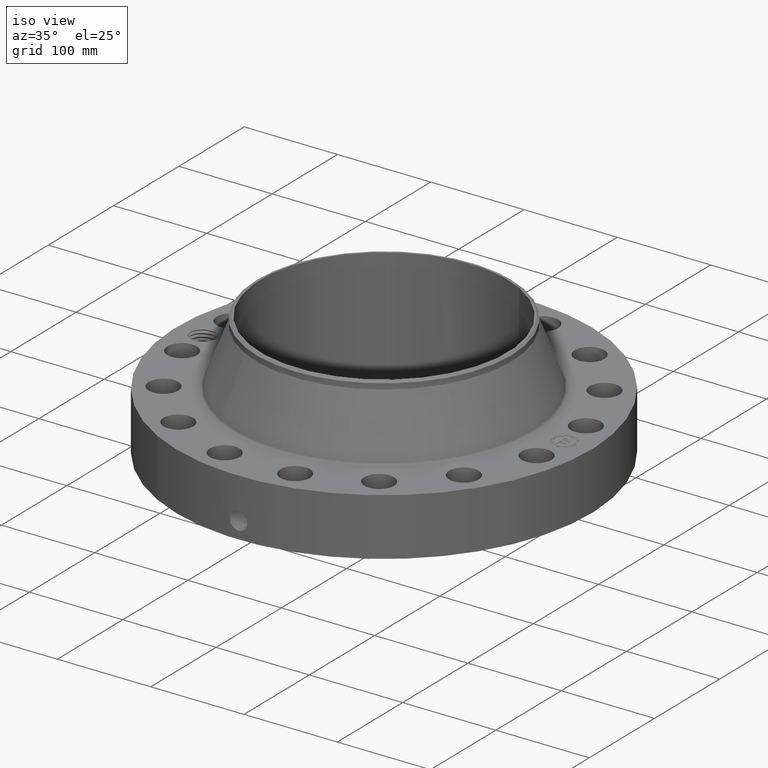
[diagram: clean part render]
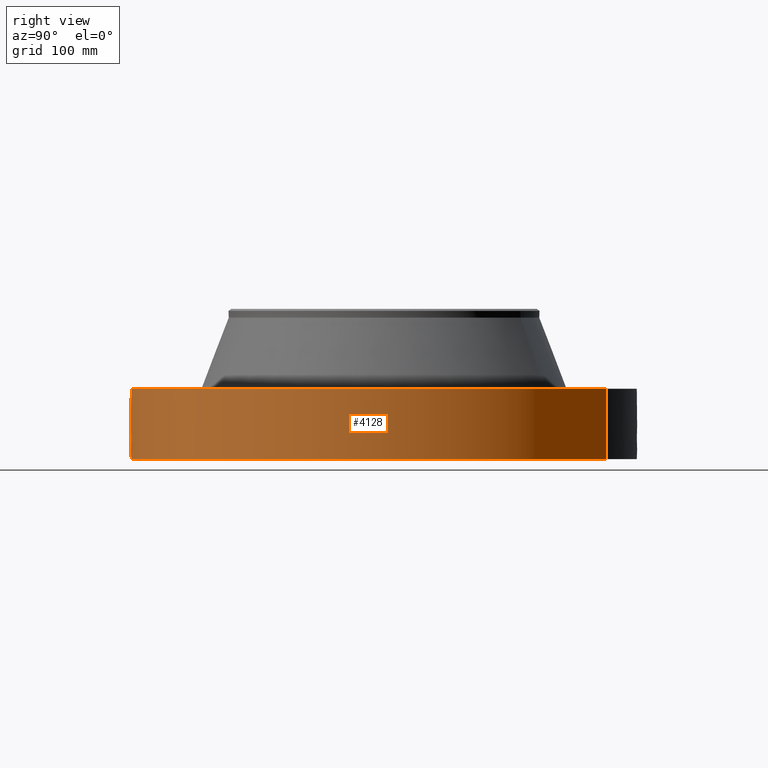
[diagram: tour spotlight — one face highlighted and labeled with its STEP entity id]
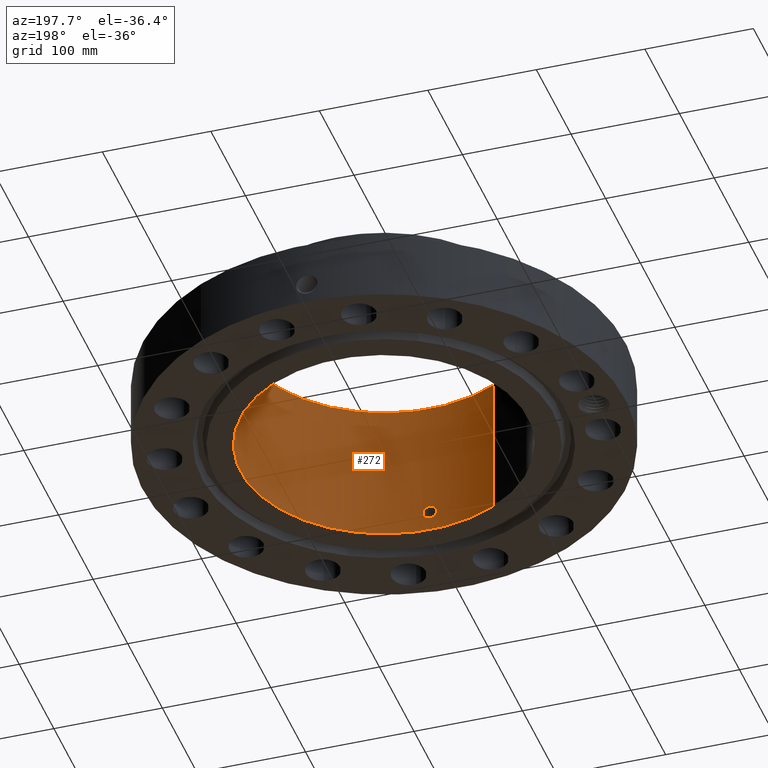
[diagram: tour spotlight — one face highlighted and labeled with its STEP entity id]
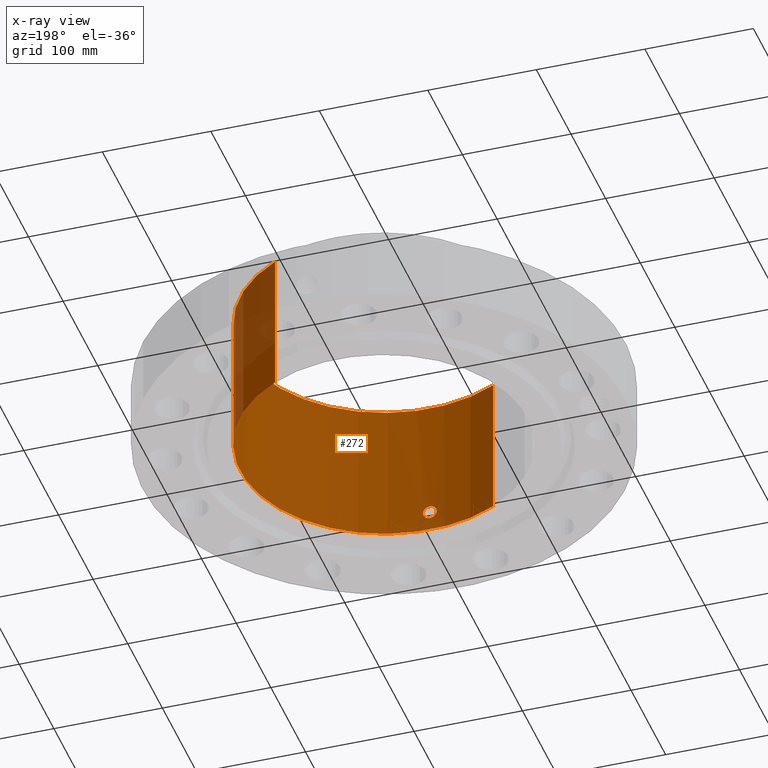
[diagram: x-ray of the same camera — body ghosted, this tour face saturated]
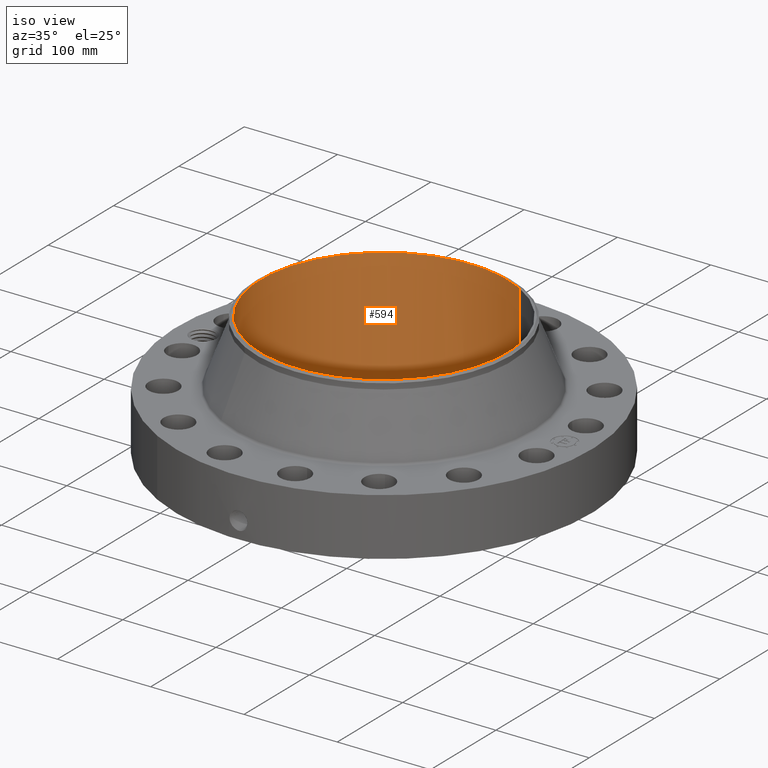
[diagram: tour spotlight — one face highlighted and labeled with its STEP entity id]
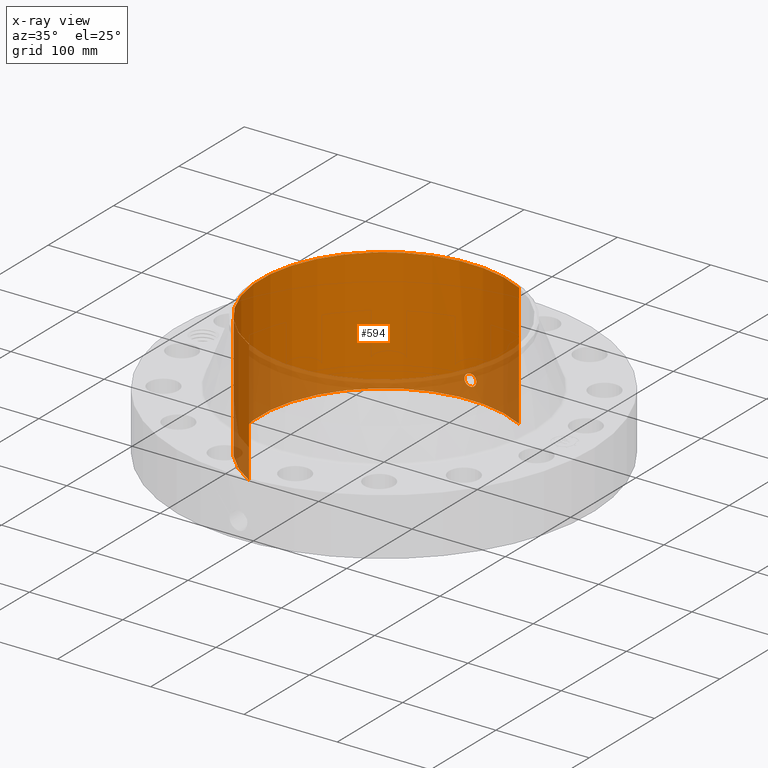
[diagram: x-ray of the same camera — body ghosted, this tour face saturated]
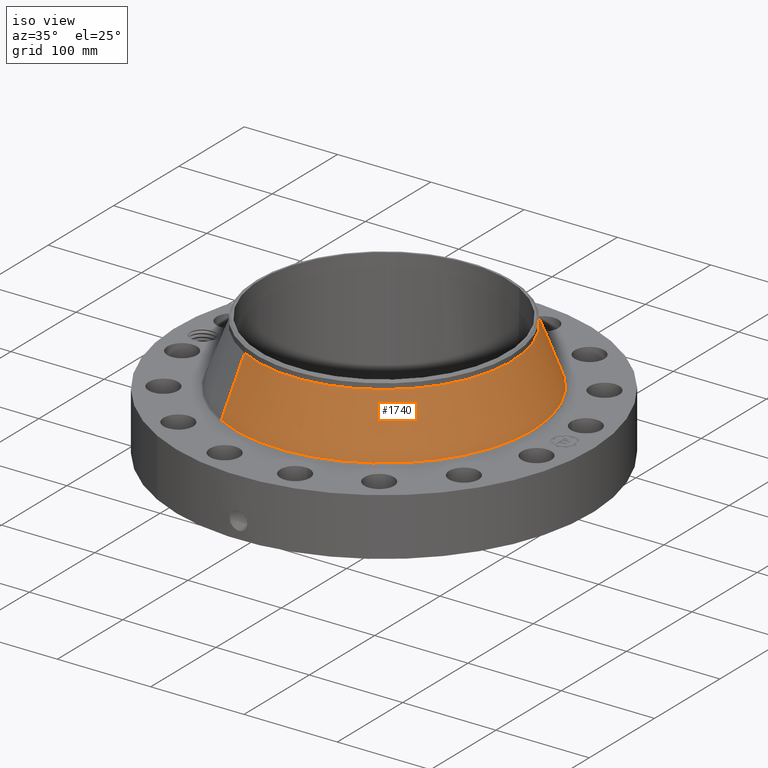
[diagram: tour spotlight — one face highlighted and labeled with its STEP entity id]
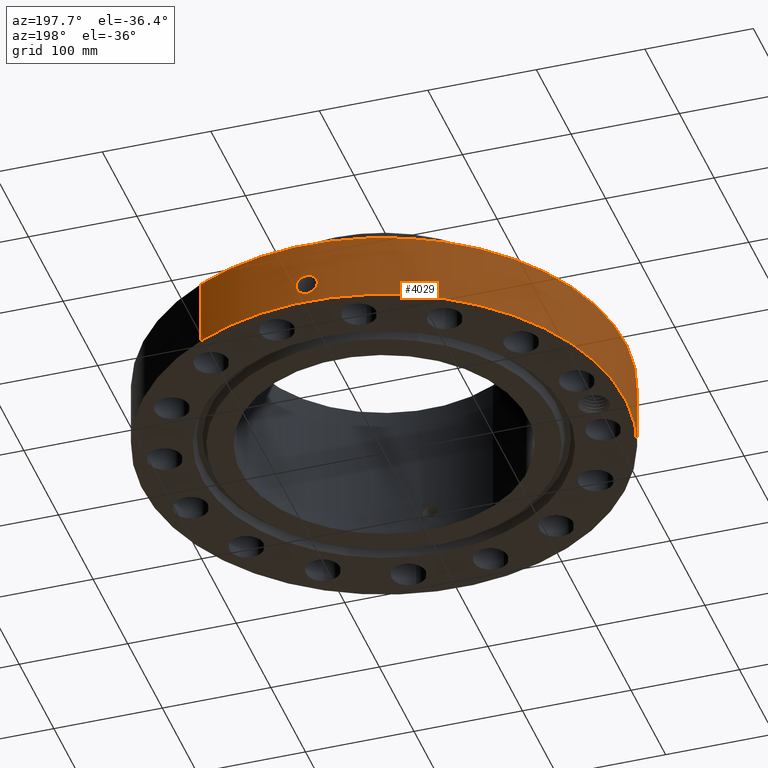
[diagram: tour spotlight — one face highlighted and labeled with its STEP entity id]
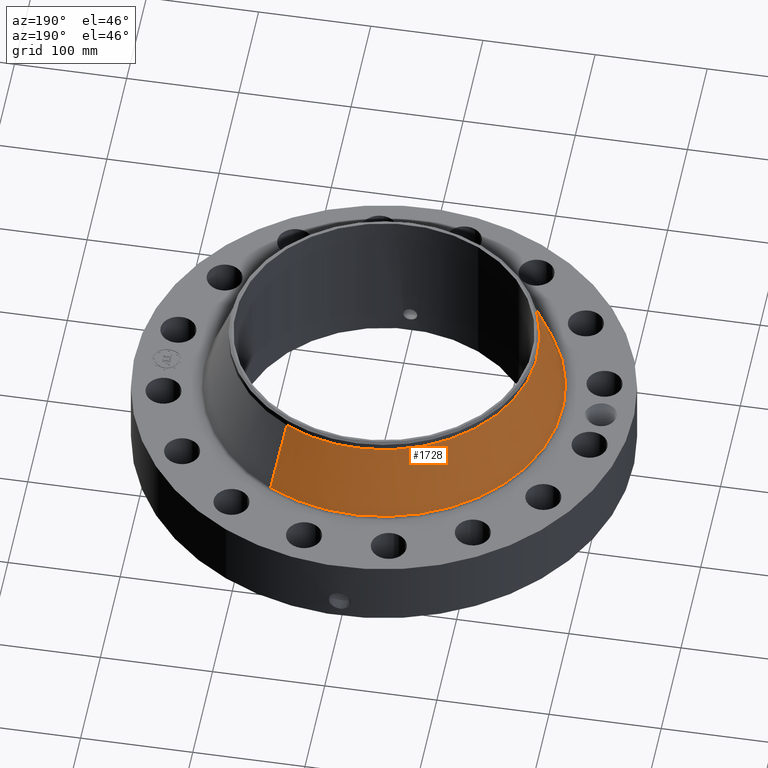
[diagram: tour spotlight — one face highlighted and labeled with its STEP entity id]
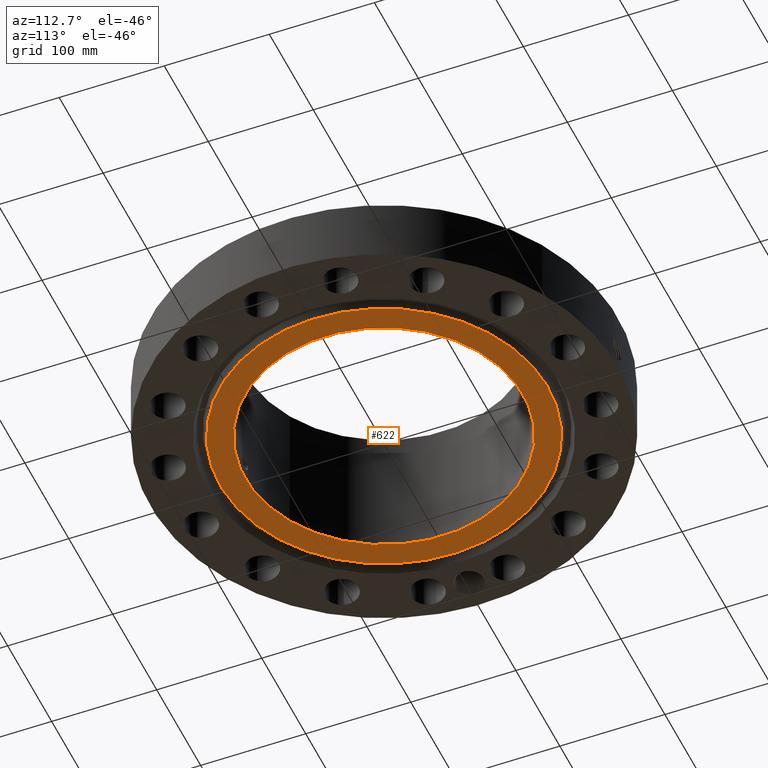
[diagram: tour spotlight — one face highlighted and labeled with its STEP entity id]
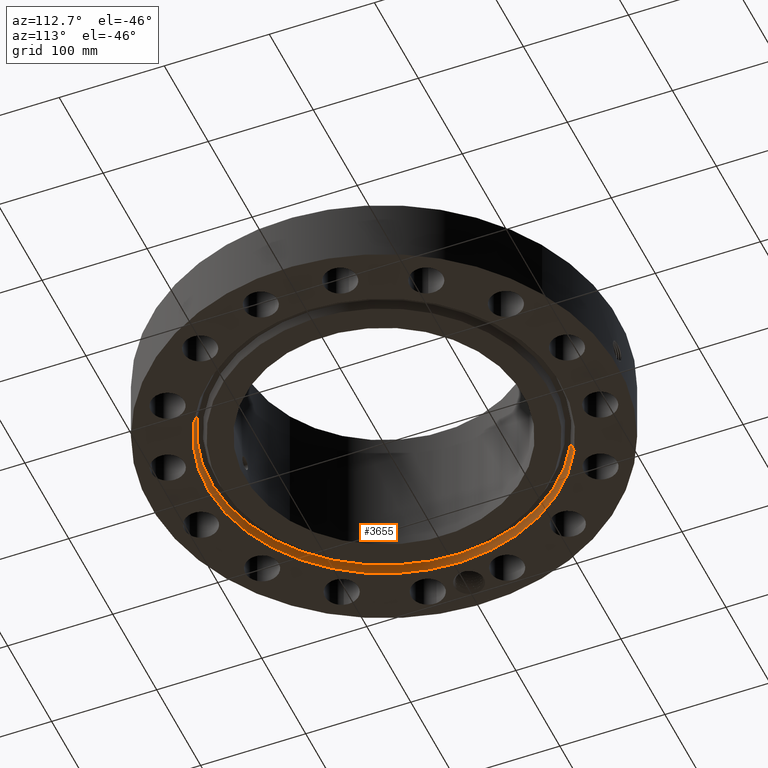
[diagram: tour spotlight — one face highlighted and labeled with its STEP entity id]
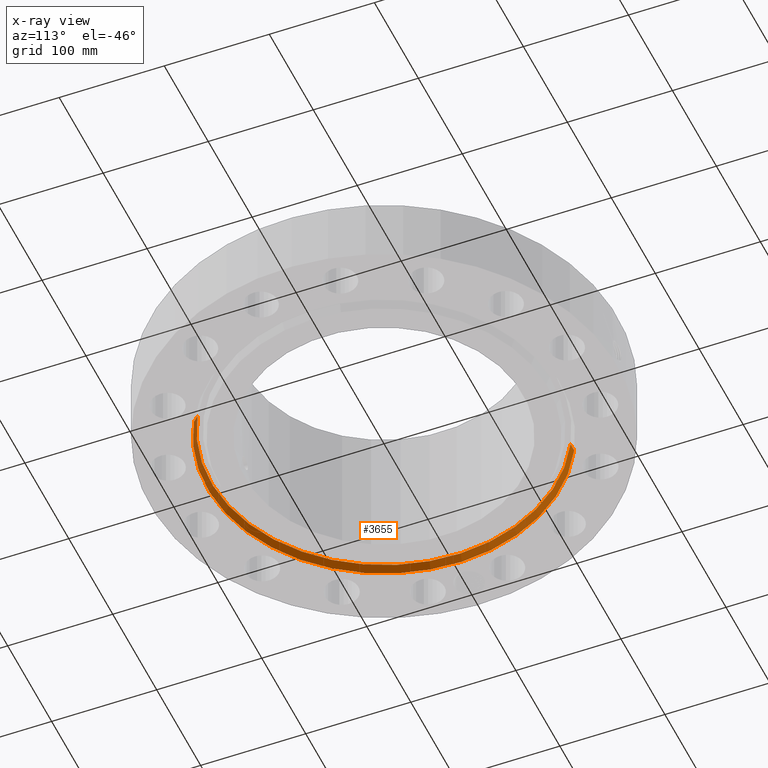
[diagram: x-ray of the same camera — body ghosted, this tour face saturated]
A machine part: a face-by-face anatomy tour. The part has 806 B-rep faces; the first image is the clean iso view, then the 8 largest visible faces are spotlighted one at a time (largest first), each with its STEP entity span.

Face 1 — right view, entity #4128. In plain terms, the highlighted cylindrical surface (partial cylindrical patch) has radius 222.25 mm, axis along (0, 0, -1).
Definition (entity closure, byte-faithful):
#2918=AXIS2_PLACEMENT_3D('Circle Axis2P3D',#2916,#2917,$) ;
#3915=AXIS2_PLACEMENT_3D('Cylinder Axis2P3D',#3912,#3913,#3914) ;
#4032=AXIS2_PLACEMENT_3D('Circle Axis2P3D',#4030,#4031,$) ;
#2916=CARTESIAN_POINT('Axis2P3D Location',(0.,0.,2.43200000001)) ;
#2920=CARTESIAN_POINT('Vertex',(4.1949734628,7.67884741657,2.43200000001)) ;
#2922=CARTESIAN_POINT('Vertex',(-4.1949734628,-7.67884741657,2.43200000001)) ;
#3912=CARTESIAN_POINT('Axis2P3D Location',(0.,0.,2.59600000001)) ;
#3921=CARTESIAN_POINT('Vertex',(-4.1949734628,-7.67884741657,5.59482469102E-016)) ;
#3923=CARTESIAN_POINT('Vertex',(4.1949734628,7.67884741657,5.59482469102E-016)) ;
#3926=CARTESIAN_POINT('Line Origine',(-4.1949734628,-7.67884741657,1.216)) ;
#3931=CARTESIAN_POINT('Line Origine',(4.1949734628,7.67884741657,1.216)) ;
#4030=CARTESIAN_POINT('Axis2P3D Location',(0.,0.,5.59482469102E-016)) ;
#4042=CARTESIAN_POINT('Control Point',(0.0581082113384,-8.74980705138,1.09931275918)) ;
#4043=CARTESIAN_POINT('Control Point',(0.0391507428738,-8.74993294954,1.10247040508)) ;
#4044=CARTESIAN_POINT('Control Point',(0.0199351377812,-8.7499983976,1.10407954749)) ;
#4045=CARTESIAN_POINT('Control Point',(0.000716211241814,-8.74999997072,1.10411849893)) ;
#4046=CARTESIAN_POINT('Vertex',(0.058094103343,-8.74980740847,1.09931539446)) ;
#4048=CARTESIAN_POINT('Vertex',(0.000716087015019,-8.74999997073,1.10411850938)) ;
#4052=CARTESIAN_POINT('Control Point',(0.0580939951518,-8.74980714578,1.09931480802)) ;
#4053=CARTESIAN_POINT('Control Point',(0.097487552732,-8.74954559383,1.09448302669)) ;
#4054=CARTESIAN_POINT('Control Point',(0.13612979578,-8.74901297423,1.08246986474)) ;
#4055=CARTESIAN_POINT('Control Point',(0.171610206376,-8.74831697744,1.06416185771)) ;
#4056=CARTESIAN_POINT('Vertex',(0.171610206376,-8.74831697744,1.06416185771)) ;
#4060=CARTESIAN_POINT('Control Point',(0.0302669250486,-8.74994765206,0.341133857002)) ;
#4061=CARTESIAN_POINT('Control Point',(0.0865126194186,-8.7497530927,0.348286208238)) ;
#4062=CARTESIAN_POINT('Control Point',(0.141163769269,-8.74911210118,0.365899658817)) ;
#4063=CARTESIAN_POINT('Control Point',(0.191479456551,-8.74808366168,0.393467512332)) ;
#4064=CARTESIAN_POINT('Control Point',(0.264585195536,-8.74612690955,0.452883889274)) ;
#4065=CARTESIAN_POINT('Control Point',(0.316528462496,-8.74430507499,0.529208859583)) ;
#4066=CARTESIAN_POINT('Control Point',(0.333583700452,-8.74365536444,0.561880812708)) ;
#4067=CARTESIAN_POINT('Control Point',(0.368975035571,-8.7422470228,0.654035266192)) ;
#4068=CARTESIAN_POINT('Control Point',(0.375098719311,-8.74194353704,0.752677612333)) ;
#4069=CARTESIAN_POINT('Control Point',(0.366946086345,-8.74231502189,0.81432650884)) ;
#4070=CARTESIAN_POINT('Control Point',(0.333642995846,-8.74374181876,0.912287176358)) ;
#4071=CARTESIAN_POINT('Control Point',(0.27096648019,-8.74586349126,0.99272421549)) ;
#4072=CARTESIAN_POINT('Control Point',(0.241231379581,-8.74676440465,1.02147019826)) ;
#4073=CARTESIAN_POINT('Control Point',(0.207766159023,-8.74760772896,1.04550526854)) ;
#4074=CARTESIAN_POINT('Control Point',(0.171610206376,-8.74831697744,1.06416185771)) ;
#4075=CARTESIAN_POINT('Vertex',(0.0302669250486,-8.74994765206,0.341133857002)) ;
#4079=CARTESIAN_POINT('Control Point',(0.0302669250486,-8.74994765206,0.341133857002)) ;
#4080=CARTESIAN_POINT('Control Point',(0.0201721120829,-8.74998257101,0.340866678134)) ;
#4081=CARTESIAN_POINT('Control Point',(0.0100722667832,-8.75000000318,0.340947102439)) ;
#4082=CARTESIAN_POINT('Control Point',(-2.72878353091E-006,-8.75000000003,0.341374667804)) ;
#4083=CARTESIAN_POINT('Vertex',(-2.72878353845E-006,-8.75000000003,0.341374667804)) ;
#4087=CARTESIAN_POINT('Control Point',(-0.19328241765,-8.74786499139,0.39620888473)) ;
#4088=CARTESIAN_POINT('Control Point',(-0.149259962972,-8.74883765918,0.371336697884)) ;
#4089=CARTESIAN_POINT('Control Point',(-0.101168996964,-8.74960564166,0.353535751558)) ;
#4090=CARTESIAN_POINT('Control Point',(-0.0508246752549,-8.74999998419,0.34353146512)) ;
#4091=CARTESIAN_POINT('Control Point',(-2.72878352313E-006,-8.75000000003,0.341374667805)) ;
#4092=CARTESIAN_POINT('Vertex',(-0.19328241765,-8.74786499139,0.39620888473)) ;
#4096=CARTESIAN_POINT('Control Point',(-0.19328241765,-8.74786499139,0.39620888473)) ;
#4097=CARTESIAN_POINT('Control Point',(-0.222320013053,-8.74722341123,0.412614795594)) ;
#4098=CARTESIAN_POINT('Control Point',(-0.249702832977,-8.74649785024,0.43190436668)) ;
#4099=CARTESIAN_POINT('Control Point',(-0.275025862912,-8.74572454017,0.453907776817)) ;
#4100=CARTESIAN_POINT('Control Point',(-0.341959797183,-8.74345929159,0.525550661122)) ;
#4101=CARTESIAN_POINT('Control Point',(-0.384721449429,-8.7415800014,0.615221601359)) ;
#4102=CARTESIAN_POINT('Control Point',(-0.399824067752,-8.74084549811,0.679596595605)) ;
#4103=CARTESIAN_POINT('Control Point',(-0.400741251108,-8.74084616896,0.793900913416)) ;
#4104=CARTESIAN_POINT('Control Point',(-0.360682760066,-8.74259093656,0.898628588351)) ;
#4105=CARTESIAN_POINT('Control Point',(-0.336434934861,-8.74359787649,0.940095914243)) ;
#4106=CARTESIAN_POINT('Control Point',(-0.267541262196,-8.74613174515,1.02398894535)) ;
#4107=CARTESIAN_POINT('Control Point',(-0.174601905421,-8.74851033423,1.07870829013)) ;
#4108=CARTESIAN_POINT('Control Point',(-0.117427757739,-8.74951483366,1.09858358611)) ;
#4109=CARTESIAN_POINT('Control Point',(-0.0582716037717,-8.75000017228,1.10701111984)) ;
#4110=CARTESIAN_POINT('Control Point',(2.585793554E-005,-8.75,1.10415298432)) ;
#4111=CARTESIAN_POINT('Vertex',(2.58579355363E-005,-8.75,1.10415298432)) ;
#4115=CARTESIAN_POINT('Control Point',(0.000716087004833,-8.74999997073,1.10411850936)) ;
#4116=CARTESIAN_POINT('Control Point',(0.000370996506658,-8.74999999898,1.1041360633)) ;
#4117=CARTESIAN_POINT('Control Point',(2.58579413648E-005,-8.75,1.10415298432)) ;
#2917=DIRECTION('Axis2P3D Direction',(0.,0.,-0.0393700787402)) ;
#3913=DIRECTION('Axis2P3D Direction',(0.,0.,-0.0393700787402)) ;
#3914=DIRECTION('Axis2P3D XDirection',(0.0188750212049,0.0345504945626,0.)) ;
#3927=DIRECTION('Vector Direction',(0.,0.,-0.0393700787402)) ;
#3932=DIRECTION('Vector Direction',(0.,0.,-0.0393700787402)) ;
#4031=DIRECTION('Axis2P3D Direction',(0.,0.,-0.0393700787402)) ;
#3928=VECTOR('Line Direction',#3927,0.0393700787402) ;
#3933=VECTOR('Line Direction',#3932,0.0393700787402) ;
#4036=ORIENTED_EDGE('',*,*,#4034,.F.) ;
#4037=ORIENTED_EDGE('',*,*,#3935,.T.) ;
#4038=ORIENTED_EDGE('',*,*,#2924,.T.) ;
#4039=ORIENTED_EDGE('',*,*,#3930,.F.) ;
#4120=ORIENTED_EDGE('',*,*,#4050,.F.) ;
#4121=ORIENTED_EDGE('',*,*,#4058,.T.) ;
#4122=ORIENTED_EDGE('',*,*,#4077,.F.) ;
#4123=ORIENTED_EDGE('',*,*,#4085,.T.) ;
#4124=ORIENTED_EDGE('',*,*,#4094,.F.) ;
#4125=ORIENTED_EDGE('',*,*,#4113,.T.) ;
#4126=ORIENTED_EDGE('',*,*,#4118,.F.) ;
#4127=FACE_BOUND('',#4119,.T.) ;
#4128=ADVANCED_FACE('PartBody',(#4040,#4127),#3916,.T.) ;
#4041=B_SPLINE_CURVE_WITH_KNOTS('',3,(#4042,#4043,#4044,#4045),.UNSPECIFIED.,.F.,.U.,(4,4),(4.38919203562,6.5213575185),.UNSPECIFIED.) ;
#4051=B_SPLINE_CURVE_WITH_KNOTS('',3,(#4052,#4053,#4054,#4055),.UNSPECIFIED.,.F.,.U.,(4,4),(0.,4.45945184489),.UNSPECIFIED.) ;
#4059=B_SPLINE_CURVE_WITH_KNOTS('',5,(#4060,#4061,#4062,#4063,#4064,#4065,#4066,#4067,#4068,#4069,#4070,#4071,#4072,#4073,#4074),.UNSPECIFIED.,.F.,.U.,(6,3,3,3,6),(0.,9.85389436005,16.4310832884,27.5941658032,35.1680977962),.UNSPECIFIED.) ;
#4078=B_SPLINE_CURVE_WITH_KNOTS('',3,(#4079,#4080,#4081,#4082),.UNSPECIFIED.,.F.,.U.,(4,4),(0.,1.05295486204),.UNSPECIFIED.) ;
#4086=B_SPLINE_CURVE_WITH_KNOTS('',4,(#4087,#4088,#4089,#4090,#4091),.UNSPECIFIED.,.F.,.U.,(5,5),(0.,7.08198369589),.UNSPECIFIED.) ;
#4095=B_SPLINE_CURVE_WITH_KNOTS('',5,(#4096,#4097,#4098,#4099,#4100,#4101,#4102,#4103,#4104,#4105,#4106,#4107,#4108,#4109,#4110),.UNSPECIFIED.,.F.,.U.,(6,3,3,3,6),(0.,5.83917277313,17.100766758,25.5637802425,36.4607847206),.UNSPECIFIED.) ;
#4114=B_SPLINE_CURVE_WITH_KNOTS('',2,(#4115,#4116,#4117),.UNSPECIFIED.,.F.,.U.,(3,3),(1.04630914316,1.07211456638),.UNSPECIFIED.) ;
#2919=CIRCLE('generated circle',#2918,8.75000000004) ;
#4033=CIRCLE('generated circle',#4032,8.75000000003) ;
#3916=CYLINDRICAL_SURFACE('generated cylinder',#3915,8.75000000003) ;
#2924=EDGE_CURVE('',#2921,#2923,#2919,.T.) ;
#3930=EDGE_CURVE('',#3922,#2923,#3929,.F.) ;
#3935=EDGE_CURVE('',#3924,#2921,#3934,.F.) ;
#4034=EDGE_CURVE('',#3924,#3922,#4033,.T.) ;
#4050=EDGE_CURVE('',#4047,#4049,#4041,.T.) ;
#4058=EDGE_CURVE('',#4047,#4057,#4051,.T.) ;
#4077=EDGE_CURVE('',#4076,#4057,#4059,.T.) ;
#4085=EDGE_CURVE('',#4076,#4084,#4078,.T.) ;
#4094=EDGE_CURVE('',#4093,#4084,#4086,.T.) ;
#4113=EDGE_CURVE('',#4093,#4112,#4095,.T.) ;
#4118=EDGE_CURVE('',#4049,#4112,#4114,.T.) ;
#4035=EDGE_LOOP('',(#4036,#4037,#4038,#4039)) ;
#4119=EDGE_LOOP('',(#4120,#4121,#4122,#4123,#4124,#4125,#4126)) ;
#4040=FACE_OUTER_BOUND('',#4035,.T.) ;
#3929=LINE('Line',#3926,#3928) ;
#3934=LINE('Line',#3931,#3933) ;
#2921=VERTEX_POINT('',#2920) ;
#2923=VERTEX_POINT('',#2922) ;
#3922=VERTEX_POINT('',#3921) ;
#3924=VERTEX_POINT('',#3923) ;
#4047=VERTEX_POINT('',#4046) ;
#4049=VERTEX_POINT('',#4048) ;
#4057=VERTEX_POINT('',#4056) ;
#4076=VERTEX_POINT('',#4075) ;
#4084=VERTEX_POINT('',#4083) ;
#4093=VERTEX_POINT('',#4092) ;
#4112=VERTEX_POINT('',#4111) ;

Face 2 — auxiliary view, entity #272. An x-ray twin of the same camera follows (body ghosted, this face saturated) — the face is partly hidden behind the body. In plain terms, the highlighted cylindrical surface (partial cylindrical patch) has radius 132.334 mm, axis along (0, 0, -1).
Definition (entity closure, byte-faithful):
#232=AXIS2_PLACEMENT_3D('Cylinder Axis2P3D',#229,#230,#231) ;
#236=AXIS2_PLACEMENT_3D('Circle Axis2P3D',#234,#235,$) ;
#252=AXIS2_PLACEMENT_3D('Circle Axis2P3D',#250,#251,$) ;
#81=CARTESIAN_POINT('Control Point',(0.219395640473,-5.2053785216,0.630143615351)) ;
#82=CARTESIAN_POINT('Control Point',(0.20692170272,-5.20590427156,0.607310225452)) ;
#83=CARTESIAN_POINT('Control Point',(0.191478161052,-5.20651775151,0.586101157606)) ;
#84=CARTESIAN_POINT('Control Point',(0.173344968667,-5.20717156544,0.567029489667)) ;
#85=CARTESIAN_POINT('Control Point',(0.112135210692,-5.2090626372,0.517549945148)) ;
#86=CARTESIAN_POINT('Control Point',(0.0349794125564,-5.21029125396,0.494025856698)) ;
#87=CARTESIAN_POINT('Control Point',(-0.0195629275544,-5.2103830272,0.492387753741)) ;
#88=CARTESIAN_POINT('Control Point',(-0.124148912451,-5.2090305894,0.517531335574)) ;
#89=CARTESIAN_POINT('Control Point',(-0.203194386894,-5.20623138686,0.590445807806)) ;
#90=CARTESIAN_POINT('Control Point',(-0.232170402879,-5.20485332582,0.636662467898)) ;
#91=CARTESIAN_POINT('Control Point',(-0.255833821541,-5.20371895007,0.714817876533)) ;
#92=CARTESIAN_POINT('Control Point',(-0.248294622216,-5.20408005818,0.7942046281)) ;
#93=CARTESIAN_POINT('Control Point',(-0.242060573047,-5.20438304358,0.82078605312)) ;
#94=CARTESIAN_POINT('Control Point',(-0.23232275344,-5.20483367127,0.846193463093)) ;
#95=CARTESIAN_POINT('Control Point',(-0.219395640473,-5.2053785216,0.869856384655)) ;
#96=CARTESIAN_POINT('Vertex',(0.219395640473,-5.2053785216,0.630143615351)) ;
#98=CARTESIAN_POINT('Vertex',(-0.219395640473,-5.2053785216,0.869856384655)) ;
#206=CARTESIAN_POINT('Control Point',(-0.219395640473,-5.2053785216,0.869856384655)) ;
#207=CARTESIAN_POINT('Control Point',(-0.206921702717,-5.20590427156,0.892689774559)) ;
#208=CARTESIAN_POINT('Control Point',(-0.191478161044,-5.20651775151,0.91389884241)) ;
#209=CARTESIAN_POINT('Control Point',(-0.173344968677,-5.20717156544,0.932970510331)) ;
#210=CARTESIAN_POINT('Control Point',(-0.112135210696,-5.2090626372,0.982450054858)) ;
#211=CARTESIAN_POINT('Control Point',(-0.0349794125502,-5.21029125396,1.00597414331)) ;
#212=CARTESIAN_POINT('Control Point',(0.0195629275478,-5.2103830272,1.00761224627)) ;
#213=CARTESIAN_POINT('Control Point',(0.124148912413,-5.2090305894,0.982468664443)) ;
#214=CARTESIAN_POINT('Control Point',(0.20319438684,-5.20623138687,0.90955419225)) ;
#215=CARTESIAN_POINT('Control Point',(0.232170402901,-5.20485332582,0.863337532037)) ;
#216=CARTESIAN_POINT('Control Point',(0.255833821538,-5.20371895007,0.785182123437)) ;
#217=CARTESIAN_POINT('Control Point',(0.248294622217,-5.20408005818,0.705795371907)) ;
#218=CARTESIAN_POINT('Control Point',(0.242060573046,-5.20438304358,0.679213946885)) ;
#219=CARTESIAN_POINT('Control Point',(0.23232275344,-5.20483367127,0.653806536913)) ;
#220=CARTESIAN_POINT('Control Point',(0.219395640473,-5.2053785216,0.630143615351)) ;
#229=CARTESIAN_POINT('Axis2P3D Location',(0.,0.,2.59600000001)) ;
#234=CARTESIAN_POINT('Axis2P3D Location',(0.,0.,5.19200000002)) ;
#238=CARTESIAN_POINT('Vertex',(2.49780705614,4.57220514747,5.19200000002)) ;
#240=CARTESIAN_POINT('Vertex',(-2.49780705614,-4.57220514747,5.19200000002)) ;
#243=CARTESIAN_POINT('Line Origine',(2.49780705614,4.57220514747,2.59600000001)) ;
#247=CARTESIAN_POINT('Vertex',(2.49780705614,4.57220514747,-1.34275792585E-014)) ;
#250=CARTESIAN_POINT('Axis2P3D Location',(0.,0.,-1.34275792585E-014)) ;
#254=CARTESIAN_POINT('Vertex',(-2.49780705614,-4.57220514747,-1.34275792585E-014)) ;
#257=CARTESIAN_POINT('Line Origine',(-2.49780705614,-4.57220514747,2.59600000001)) ;
#230=DIRECTION('Axis2P3D Direction',(0.,0.,-0.0393700787402)) ;
#231=DIRECTION('Axis2P3D XDirection',(-0.0188750212049,-0.0345504945626,0.)) ;
#235=DIRECTION('Axis2P3D Direction',(0.,0.,-0.0393700787402)) ;
#244=DIRECTION('Vector Direction',(0.,0.,-0.0393700787402)) ;
#251=DIRECTION('Axis2P3D Direction',(0.,0.,-0.0393700787402)) ;
#258=DIRECTION('Vector Direction',(0.,0.,-0.0393700787402)) ;
#245=VECTOR('Line Direction',#244,0.0393700787402) ;
#259=VECTOR('Line Direction',#258,0.0393700787402) ;
#263=ORIENTED_EDGE('',*,*,#242,.F.) ;
#264=ORIENTED_EDGE('',*,*,#249,.T.) ;
#265=ORIENTED_EDGE('',*,*,#256,.T.) ;
#266=ORIENTED_EDGE('',*,*,#261,.F.) ;
#269=ORIENTED_EDGE('',*,*,#100,.F.) ;
#270=ORIENTED_EDGE('',*,*,#221,.F.) ;
#271=FACE_BOUND('',#268,.T.) ;
#272=ADVANCED_FACE('PartBody',(#267,#271),#233,.F.) ;
#80=B_SPLINE_CURVE_WITH_KNOTS('',5,(#81,#82,#83,#84,#85,#86,#87,#88,#89,#90,#91,#92,#93,#94,#95),.UNSPECIFIED.,.F.,.U.,(6,3,3,3,6),(0.,4.67401145629,14.0221832397,23.3721751167,28.2159923055),.UNSPECIFIED.) ;
#205=B_SPLINE_CURVE_WITH_KNOTS('',5,(#206,#207,#208,#209,#210,#211,#212,#213,#214,#215,#216,#217,#218,#219,#220),.UNSPECIFIED.,.F.,.U.,(6,3,3,3,6),(0.,4.6740114574,14.0221832414,23.372175112,28.2159923006),.UNSPECIFIED.) ;
#237=CIRCLE('generated circle',#236,5.21000000002) ;
#253=CIRCLE('generated circle',#252,5.21000000002) ;
#233=CYLINDRICAL_SURFACE('generated cylinder',#232,5.21000000002) ;
#100=EDGE_CURVE('',#97,#99,#80,.T.) ;
#221=EDGE_CURVE('',#99,#97,#205,.T.) ;
#242=EDGE_CURVE('',#239,#241,#237,.T.) ;
#249=EDGE_CURVE('',#239,#248,#246,.T.) ;
#256=EDGE_CURVE('',#248,#255,#253,.T.) ;
#261=EDGE_CURVE('',#241,#255,#260,.T.) ;
#262=EDGE_LOOP('',(#263,#264,#265,#266)) ;
#268=EDGE_LOOP('',(#269,#270)) ;
#267=FACE_OUTER_BOUND('',#262,.T.) ;
#246=LINE('Line',#243,#245) ;
#260=LINE('Line',#257,#259) ;
#97=VERTEX_POINT('',#96) ;
#99=VERTEX_POINT('',#98) ;
#239=VERTEX_POINT('',#238) ;
#241=VERTEX_POINT('',#240) ;
#248=VERTEX_POINT('',#247) ;
#255=VERTEX_POINT('',#254) ;

Face 3 — iso view, entity #594. An x-ray twin of the same camera follows (body ghosted, this face saturated) — the face is partly hidden behind the body. In plain terms, the highlighted cylindrical surface (partial cylindrical patch) has radius 132.334 mm, axis along (0, 0, -1).
Definition (entity closure, byte-faithful):
#232=AXIS2_PLACEMENT_3D('Cylinder Axis2P3D',#229,#230,#231) ;
#533=AXIS2_PLACEMENT_3D('Circle Axis2P3D',#531,#532,$) ;
#543=AXIS2_PLACEMENT_3D('Circle Axis2P3D',#541,#542,$) ;
#229=CARTESIAN_POINT('Axis2P3D Location',(0.,0.,2.59600000001)) ;
#238=CARTESIAN_POINT('Vertex',(2.49780705614,4.57220514747,5.19200000002)) ;
#240=CARTESIAN_POINT('Vertex',(-2.49780705614,-4.57220514747,5.19200000002)) ;
#243=CARTESIAN_POINT('Line Origine',(2.49780705614,4.57220514747,2.59600000001)) ;
#247=CARTESIAN_POINT('Vertex',(2.49780705614,4.57220514747,-1.34275792585E-014)) ;
#254=CARTESIAN_POINT('Vertex',(-2.49780705614,-4.57220514747,-1.34275792585E-014)) ;
#257=CARTESIAN_POINT('Line Origine',(-2.49780705614,-4.57220514747,2.59600000001)) ;
#531=CARTESIAN_POINT('Axis2P3D Location',(0.,0.,5.19200000002)) ;
#541=CARTESIAN_POINT('Axis2P3D Location',(0.,0.,-1.34275792585E-014)) ;
#553=CARTESIAN_POINT('Control Point',(0.219395640473,5.2053785216,0.869856384655)) ;
#554=CARTESIAN_POINT('Control Point',(0.206921702731,5.20590427156,0.892689774534)) ;
#555=CARTESIAN_POINT('Control Point',(0.191478170155,5.20651775227,0.913898825838)) ;
#556=CARTESIAN_POINT('Control Point',(0.173344984675,5.20717156625,0.932970500497)) ;
#557=CARTESIAN_POINT('Control Point',(0.112135178573,5.20906263559,0.982450074615)) ;
#558=CARTESIAN_POINT('Control Point',(0.0349794766926,5.21029125719,1.00597410384)) ;
#559=CARTESIAN_POINT('Control Point',(-0.0195628611234,5.2103830242,1.00761228185)) ;
#560=CARTESIAN_POINT('Control Point',(-0.124148978827,5.2090305924,0.98246862887)) ;
#561=CARTESIAN_POINT('Control Point',(-0.203194320435,5.20623138386,0.909554227818)) ;
#562=CARTESIAN_POINT('Control Point',(-0.232170399899,5.20485332553,0.863337607448)) ;
#563=CARTESIAN_POINT('Control Point',(-0.255833823097,5.20371895022,0.785182084372)) ;
#564=CARTESIAN_POINT('Control Point',(-0.248294621409,5.20408005811,0.705795392095)) ;
#565=CARTESIAN_POINT('Control Point',(-0.242060563313,5.20438304277,0.679213929178)) ;
#566=CARTESIAN_POINT('Control Point',(-0.23232275345,5.20483367127,0.653806536932)) ;
#567=CARTESIAN_POINT('Control Point',(-0.219395640473,5.2053785216,0.630143615351)) ;
#568=CARTESIAN_POINT('Vertex',(0.219395640473,5.2053785216,0.869856384655)) ;
#570=CARTESIAN_POINT('Vertex',(-0.219395640473,5.2053785216,0.630143615351)) ;
#574=CARTESIAN_POINT('Control Point',(-0.219395640473,5.2053785216,0.630143615351)) ;
#575=CARTESIAN_POINT('Control Point',(-0.206921702731,5.20590427156,0.607310225472)) ;
#576=CARTESIAN_POINT('Control Point',(-0.191478170156,5.20651775227,0.586101174169)) ;
#577=CARTESIAN_POINT('Control Point',(-0.173344984675,5.20717156625,0.567029499509)) ;
#578=CARTESIAN_POINT('Control Point',(-0.112135178588,5.20906263558,0.517549925402)) ;
#579=CARTESIAN_POINT('Control Point',(-0.0349794767298,5.21029125719,0.494025896179)) ;
#580=CARTESIAN_POINT('Control Point',(0.0195628611578,5.2103830242,0.492387718169)) ;
#581=CARTESIAN_POINT('Control Point',(0.124148978865,5.2090305924,0.517531371155)) ;
#582=CARTESIAN_POINT('Control Point',(0.203194320475,5.20623138386,0.590445772224)) ;
#583=CARTESIAN_POINT('Control Point',(0.232170399882,5.20485332553,0.636662392503)) ;
#584=CARTESIAN_POINT('Control Point',(0.255833823086,5.20371895022,0.71481791556)) ;
#585=CARTESIAN_POINT('Control Point',(0.248294621417,5.20408005811,0.79420460782)) ;
#586=CARTESIAN_POINT('Control Point',(0.242060563281,5.20438304277,0.820786070912)) ;
#587=CARTESIAN_POINT('Control Point',(0.232322753429,5.20483367127,0.846193463113)) ;
#588=CARTESIAN_POINT('Control Point',(0.219395640473,5.2053785216,0.869856384655)) ;
#230=DIRECTION('Axis2P3D Direction',(0.,0.,-0.0393700787402)) ;
#231=DIRECTION('Axis2P3D XDirection',(-0.0188750212049,-0.0345504945626,0.)) ;
#244=DIRECTION('Vector Direction',(0.,0.,-0.0393700787402)) ;
#258=DIRECTION('Vector Direction',(0.,0.,-0.0393700787402)) ;
#532=DIRECTION('Axis2P3D Direction',(0.,0.,-0.0393700787402)) ;
#542=DIRECTION('Axis2P3D Direction',(0.,0.,-0.0393700787402)) ;
#245=VECTOR('Line Direction',#244,0.0393700787402) ;
#259=VECTOR('Line Direction',#258,0.0393700787402) ;
#547=ORIENTED_EDGE('',*,*,#535,.F.) ;
#548=ORIENTED_EDGE('',*,*,#261,.T.) ;
#549=ORIENTED_EDGE('',*,*,#545,.T.) ;
#550=ORIENTED_EDGE('',*,*,#249,.F.) ;
#591=ORIENTED_EDGE('',*,*,#572,.F.) ;
#592=ORIENTED_EDGE('',*,*,#589,.F.) ;
#593=FACE_BOUND('',#590,.T.) ;
#594=ADVANCED_FACE('PartBody',(#551,#593),#233,.F.) ;
#552=B_SPLINE_CURVE_WITH_KNOTS('',5,(#553,#554,#555,#556,#557,#558,#559,#560,#561,#562,#563,#564,#565,#566,#567),.UNSPECIFIED.,.F.,.U.,(6,3,3,3,6),(0.,4.67401145238,14.0221832388,23.3721751116,28.2159923042),.UNSPECIFIED.) ;
#573=B_SPLINE_CURVE_WITH_KNOTS('',5,(#574,#575,#576,#577,#578,#579,#580,#581,#582,#583,#584,#585,#586,#587,#588),.UNSPECIFIED.,.F.,.U.,(6,3,3,3,6),(0.,4.67401145225,14.0221832354,23.3721751131,28.2159922977),.UNSPECIFIED.) ;
#534=CIRCLE('generated circle',#533,5.21000000002) ;
#544=CIRCLE('generated circle',#543,5.21000000002) ;
#233=CYLINDRICAL_SURFACE('generated cylinder',#232,5.21000000002) ;
#249=EDGE_CURVE('',#239,#248,#246,.T.) ;
#261=EDGE_CURVE('',#241,#255,#260,.T.) ;
#535=EDGE_CURVE('',#241,#239,#534,.T.) ;
#545=EDGE_CURVE('',#255,#248,#544,.T.) ;
#572=EDGE_CURVE('',#569,#571,#552,.T.) ;
#589=EDGE_CURVE('',#571,#569,#573,.T.) ;
#546=EDGE_LOOP('',(#547,#548,#549,#550)) ;
#590=EDGE_LOOP('',(#591,#592)) ;
#551=FACE_OUTER_BOUND('',#546,.T.) ;
#246=LINE('Line',#243,#245) ;
#260=LINE('Line',#257,#259) ;
#239=VERTEX_POINT('',#238) ;
#241=VERTEX_POINT('',#240) ;
#248=VERTEX_POINT('',#247) ;
#255=VERTEX_POINT('',#254) ;
#569=VERTEX_POINT('',#568) ;
#571=VERTEX_POINT('',#570) ;

Face 4 — iso view, entity #1740. In plain terms, the highlighted conical surface has half-angle 20.83 deg.
Definition (entity closure, byte-faithful):
#1364=AXIS2_PLACEMENT_3D('Circle Axis2P3D',#1362,#1363,$) ;
#1701=AXIS2_PLACEMENT_3D('Cone Axis2P3D',#1698,#1699,#1700) ;
#1731=AXIS2_PLACEMENT_3D('Circle Axis2P3D',#1729,#1730,$) ;
#1339=CARTESIAN_POINT('Vertex',(2.57691227001,4.71700627018,4.88959002244)) ;
#1346=CARTESIAN_POINT('Vertex',(-2.57691227001,-4.71700627018,4.88959002244)) ;
#1362=CARTESIAN_POINT('Axis2P3D Location',(0.,0.,4.88959002244)) ;
#1698=CARTESIAN_POINT('Axis2P3D Location',(0.,0.,4.88959002244)) ;
#1707=CARTESIAN_POINT('Vertex',(-3.01107031894,-5.51172724804,2.50932937592)) ;
#1709=CARTESIAN_POINT('Vertex',(3.01107031894,5.51172724804,2.50932937592)) ;
#1712=CARTESIAN_POINT('Line Origine',(-2.79399129447,-5.11436675911,3.69945969918)) ;
#1717=CARTESIAN_POINT('Line Origine',(2.79399129447,5.11436675911,3.69945969918)) ;
#1729=CARTESIAN_POINT('Axis2P3D Location',(0.,0.,2.50932937592)) ;
#1363=DIRECTION('Axis2P3D Direction',(0.,0.,-0.0393700787402)) ;
#1699=DIRECTION('Axis2P3D Direction',(0.,0.,-0.0393700787402)) ;
#1700=DIRECTION('Axis2P3D XDirection',(0.0188750212049,0.0345504945626,0.)) ;
#1713=DIRECTION('Vector Direction',(-0.00671174112036,-0.0122857597121,-0.0367969528553)) ;
#1718=DIRECTION('Vector Direction',(0.00671174112036,0.0122857597121,-0.0367969528553)) ;
#1730=DIRECTION('Axis2P3D Direction',(0.,0.,-0.0393700787402)) ;
#1714=VECTOR('Line Direction',#1713,0.0393700787402) ;
#1719=VECTOR('Line Direction',#1718,0.0393700787402) ;
#1735=ORIENTED_EDGE('',*,*,#1733,.F.) ;
#1736=ORIENTED_EDGE('',*,*,#1721,.T.) ;
#1737=ORIENTED_EDGE('',*,*,#1366,.T.) ;
#1738=ORIENTED_EDGE('',*,*,#1716,.F.) ;
#1740=ADVANCED_FACE('PartBody',(#1739),#1702,.T.) ;
#1365=CIRCLE('generated circle',#1364,5.37500000002) ;
#1732=CIRCLE('generated circle',#1731,6.28057972821) ;
#1702=CONICAL_SURFACE('Cone',#1701,5.37500000002,0.363543680777) ;
#1366=EDGE_CURVE('',#1340,#1347,#1365,.T.) ;
#1716=EDGE_CURVE('',#1708,#1347,#1715,.F.) ;
#1721=EDGE_CURVE('',#1710,#1340,#1720,.F.) ;
#1733=EDGE_CURVE('',#1710,#1708,#1732,.T.) ;
#1734=EDGE_LOOP('',(#1735,#1736,#1737,#1738)) ;
#1739=FACE_OUTER_BOUND('',#1734,.T.) ;
#1715=LINE('Line',#1712,#1714) ;
#1720=LINE('Line',#1717,#1719) ;
#1340=VERTEX_POINT('',#1339) ;
#1347=VERTEX_POINT('',#1346) ;
#1708=VERTEX_POINT('',#1707) ;
#1710=VERTEX_POINT('',#1709) ;

Face 5 — auxiliary view, entity #4029. In plain terms, the highlighted cylindrical surface (partial cylindrical patch) has radius 222.25 mm, axis along (0, 0, -1).
Definition (entity closure, byte-faithful):
#2927=AXIS2_PLACEMENT_3D('Circle Axis2P3D',#2925,#2926,$) ;
#3915=AXIS2_PLACEMENT_3D('Cylinder Axis2P3D',#3912,#3913,#3914) ;
#3919=AXIS2_PLACEMENT_3D('Circle Axis2P3D',#3917,#3918,$) ;
#2920=CARTESIAN_POINT('Vertex',(4.1949734628,7.67884741657,2.43200000001)) ;
#2922=CARTESIAN_POINT('Vertex',(-4.1949734628,-7.67884741657,2.43200000001)) ;
#2925=CARTESIAN_POINT('Axis2P3D Location',(0.,0.,2.43200000001)) ;
#3912=CARTESIAN_POINT('Axis2P3D Location',(0.,0.,2.59600000001)) ;
#3917=CARTESIAN_POINT('Axis2P3D Location',(0.,0.,5.59482469102E-016)) ;
#3921=CARTESIAN_POINT('Vertex',(-4.1949734628,-7.67884741657,5.59482469102E-016)) ;
#3923=CARTESIAN_POINT('Vertex',(4.1949734628,7.67884741657,5.59482469102E-016)) ;
#3926=CARTESIAN_POINT('Line Origine',(-4.1949734628,-7.67884741657,1.216)) ;
#3931=CARTESIAN_POINT('Line Origine',(4.1949734628,7.67884741657,1.216)) ;
#3943=CARTESIAN_POINT('Control Point',(-0.058108211345,8.74980705138,1.09931275918)) ;
#3944=CARTESIAN_POINT('Control Point',(-0.0391507428816,8.74993294954,1.10247040508)) ;
#3945=CARTESIAN_POINT('Control Point',(-0.0199351377871,8.7499983976,1.10407954749)) ;
#3946=CARTESIAN_POINT('Control Point',(-0.000716211241924,8.74999997072,1.10411849893)) ;
#3947=CARTESIAN_POINT('Vertex',(-0.058094103343,8.74980740847,1.09931539446)) ;
#3949=CARTESIAN_POINT('Vertex',(-0.000716087015016,8.74999997073,1.10411850938)) ;
#3953=CARTESIAN_POINT('Control Point',(-0.0580939951518,8.74980714578,1.09931480802)) ;
#3954=CARTESIAN_POINT('Control Point',(-0.0974875527279,8.74954559383,1.09448302669)) ;
#3955=CARTESIAN_POINT('Control Point',(-0.136129795783,8.74901297423,1.08246986474)) ;
#3956=CARTESIAN_POINT('Control Point',(-0.171610206376,8.74831697744,1.06416185771)) ;
#3957=CARTESIAN_POINT('Vertex',(-0.171610206376,8.74831697744,1.06416185771)) ;
#3961=CARTESIAN_POINT('Control Point',(-0.0302669250486,8.74994765206,0.341133857002)) ;
#3962=CARTESIAN_POINT('Control Point',(-0.0865126194328,8.7497530927,0.34828620824)) ;
#3963=CARTESIAN_POINT('Control Point',(-0.141163769297,8.74911210118,0.365899658826)) ;
#3964=CARTESIAN_POINT('Control Point',(-0.191479456604,8.74808366168,0.393467512362)) ;
#3965=CARTESIAN_POINT('Control Point',(-0.26458519559,8.74612690955,0.452883889328)) ;
#3966=CARTESIAN_POINT('Control Point',(-0.31652846254,8.74430507499,0.529208859658)) ;
#3967=CARTESIAN_POINT('Control Point',(-0.33358370049,8.74365536444,0.561880812789)) ;
#3968=CARTESIAN_POINT('Control Point',(-0.368975035587,8.7422470228,0.654035266278)) ;
#3969=CARTESIAN_POINT('Control Point',(-0.375098719306,8.74194353704,0.752677612416)) ;
#3970=CARTESIAN_POINT('Control Point',(-0.366946086325,8.74231502189,0.814326508934)) ;
#3971=CARTESIAN_POINT('Control Point',(-0.33364299581,8.74374181876,0.912287176421)) ;
#3972=CARTESIAN_POINT('Control Point',(-0.270966480153,8.74586349126,0.992724215525)) ;
#3973=CARTESIAN_POINT('Control Point',(-0.241231379549,8.74676440465,1.02147019828)) ;
#3974=CARTESIAN_POINT('Control Point',(-0.207766159006,8.74760772896,1.04550526855)) ;
#3975=CARTESIAN_POINT('Control Point',(-0.171610206376,8.74831697744,1.06416185771)) ;
#3976=CARTESIAN_POINT('Vertex',(-0.0302669250486,8.74994765206,0.341133857002)) ;
#3980=CARTESIAN_POINT('Control Point',(-0.0302669250486,8.74994765206,0.341133857002)) ;
#3981=CARTESIAN_POINT('Control Point',(-0.0201721120829,8.74998257101,0.340866678134)) ;
#3982=CARTESIAN_POINT('Control Point',(-0.0100722667832,8.75000000318,0.340947102439)) ;
#3983=CARTESIAN_POINT('Control Point',(2.72878355316E-006,8.75000000003,0.341374667804)) ;
#3984=CARTESIAN_POINT('Vertex',(2.72878353736E-006,8.75000000003,0.341374667804)) ;
#3988=CARTESIAN_POINT('Control Point',(0.19328241765,8.74786499139,0.39620888473)) ;
#3989=CARTESIAN_POINT('Control Point',(0.149259962967,8.74883765918,0.371336697881)) ;
#3990=CARTESIAN_POINT('Control Point',(0.101168996965,8.74960564166,0.353535751557)) ;
#3991=CARTESIAN_POINT('Control Point',(0.0508246752609,8.74999998419,0.34353146512)) ;
#3992=CARTESIAN_POINT('Control Point',(2.72878350654E-006,8.75000000003,0.341374667805)) ;
#3993=CARTESIAN_POINT('Vertex',(0.19328241765,8.74786499139,0.39620888473)) ;
#3997=CARTESIAN_POINT('Control Point',(0.19328241765,8.74786499139,0.39620888473)) ;
#3998=CARTESIAN_POINT('Control Point',(0.222320013093,8.74722341123,0.412614795616)) ;
#3999=CARTESIAN_POINT('Control Point',(0.249702833051,8.74649785024,0.431904366732)) ;
#4000=CARTESIAN_POINT('Control Point',(0.275025863018,8.74572454017,0.45390777691)) ;
#4001=CARTESIAN_POINT('Control Point',(0.341959797298,8.74345929158,0.525550661286)) ;
#4002=CARTESIAN_POINT('Control Point',(0.384721449512,8.74158000139,0.615221601603)) ;
#4003=CARTESIAN_POINT('Control Point',(0.399824067784,8.74084549811,0.679596595806)) ;
#4004=CARTESIAN_POINT('Control Point',(0.400741251075,8.74084616897,0.793900913616)) ;
#4005=CARTESIAN_POINT('Control Point',(0.360682759976,8.74259093656,0.898628588527)) ;
#4006=CARTESIAN_POINT('Control Point',(0.336434934722,8.74359787649,0.940095914446)) ;
#4007=CARTESIAN_POINT('Control Point',(0.267541262044,8.74613174516,1.02398894547)) ;
#4008=CARTESIAN_POINT('Control Point',(0.174601905304,8.74851033423,1.07870829017)) ;
#4009=CARTESIAN_POINT('Control Point',(0.117427757643,8.74951483366,1.09858358612)) ;
#4010=CARTESIAN_POINT('Control Point',(0.0582716037239,8.75000017228,1.10701111984)) ;
#4011=CARTESIAN_POINT('Control Point',(-2.58579355566E-005,8.75,1.10415298432)) ;
#4012=CARTESIAN_POINT('Vertex',(-2.58579355373E-005,8.75,1.10415298432)) ;
#4016=CARTESIAN_POINT('Control Point',(-0.000716087004832,8.74999997073,1.10411850936)) ;
#4017=CARTESIAN_POINT('Control Point',(-0.000370996506643,8.74999999898,1.1041360633)) ;
#4018=CARTESIAN_POINT('Control Point',(-2.58579413375E-005,8.75,1.10415298432)) ;
#2926=DIRECTION('Axis2P3D Direction',(0.,0.,-0.0393700787402)) ;
#3913=DIRECTION('Axis2P3D Direction',(0.,0.,-0.0393700787402)) ;
#3914=DIRECTION('Axis2P3D XDirection',(0.0188750212049,0.0345504945626,0.)) ;
#3918=DIRECTION('Axis2P3D Direction',(0.,0.,-0.0393700787402)) ;
#3927=DIRECTION('Vector Direction',(0.,0.,-0.0393700787402)) ;
#3932=DIRECTION('Vector Direction',(0.,0.,-0.0393700787402)) ;
#3928=VECTOR('Line Direction',#3927,0.0393700787402) ;
#3933=VECTOR('Line Direction',#3932,0.0393700787402) ;
#3937=ORIENTED_EDGE('',*,*,#3925,.F.) ;
#3938=ORIENTED_EDGE('',*,*,#3930,.T.) ;
#3939=ORIENTED_EDGE('',*,*,#2929,.T.) ;
#3940=ORIENTED_EDGE('',*,*,#3935,.F.) ;
#4021=ORIENTED_EDGE('',*,*,#3951,.F.) ;
#4022=ORIENTED_EDGE('',*,*,#3959,.T.) ;
#4023=ORIENTED_EDGE('',*,*,#3978,.F.) ;
#4024=ORIENTED_EDGE('',*,*,#3986,.T.) ;
#4025=ORIENTED_EDGE('',*,*,#3995,.F.) ;
#4026=ORIENTED_EDGE('',*,*,#4014,.T.) ;
#4027=ORIENTED_EDGE('',*,*,#4019,.F.) ;
#4028=FACE_BOUND('',#4020,.T.) ;
#4029=ADVANCED_FACE('PartBody',(#3941,#4028),#3916,.T.) ;
#3942=B_SPLINE_CURVE_WITH_KNOTS('',3,(#3943,#3944,#3945,#3946),.UNSPECIFIED.,.F.,.U.,(4,4),(4.38919203665,6.52135752026),.UNSPECIFIED.) ;
#3952=B_SPLINE_CURVE_WITH_KNOTS('',3,(#3953,#3954,#3955,#3956),.UNSPECIFIED.,.F.,.U.,(4,4),(0.,4.45945184442),.UNSPECIFIED.) ;
#3960=B_SPLINE_CURVE_WITH_KNOTS('',5,(#3961,#3962,#3963,#3964,#3965,#3966,#3967,#3968,#3969,#3970,#3971,#3972,#3973,#3974,#3975),.UNSPECIFIED.,.F.,.U.,(6,3,3,3,6),(0.,9.85389436253,16.4310832909,27.5941658051,35.1680977947),.UNSPECIFIED.) ;
#3979=B_SPLINE_CURVE_WITH_KNOTS('',3,(#3980,#3981,#3982,#3983),.UNSPECIFIED.,.F.,.U.,(4,4),(0.,1.05295486204),.UNSPECIFIED.) ;
#3987=B_SPLINE_CURVE_WITH_KNOTS('',4,(#3988,#3989,#3990,#3991,#3992),.UNSPECIFIED.,.F.,.U.,(5,5),(0.,7.08198369672),.UNSPECIFIED.) ;
#3996=B_SPLINE_CURVE_WITH_KNOTS('',5,(#3997,#3998,#3999,#4000,#4001,#4002,#4003,#4004,#4005,#4006,#4007,#4008,#4009,#4010,#4011),.UNSPECIFIED.,.F.,.U.,(6,3,3,3,6),(0.,5.83917278101,17.100766768,25.5637802505,36.4607847196),.UNSPECIFIED.) ;
#4015=B_SPLINE_CURVE_WITH_KNOTS('',2,(#4016,#4017,#4018),.UNSPECIFIED.,.F.,.U.,(3,3),(1.04630914316,1.07211456638),.UNSPECIFIED.) ;
#2928=CIRCLE('generated circle',#2927,8.75000000004) ;
#3920=CIRCLE('generated circle',#3919,8.75000000003) ;
#3916=CYLINDRICAL_SURFACE('generated cylinder',#3915,8.75000000003) ;
#2929=EDGE_CURVE('',#2923,#2921,#2928,.T.) ;
#3925=EDGE_CURVE('',#3922,#3924,#3920,.T.) ;
#3930=EDGE_CURVE('',#3922,#2923,#3929,.F.) ;
#3935=EDGE_CURVE('',#3924,#2921,#3934,.F.) ;
#3951=EDGE_CURVE('',#3948,#3950,#3942,.T.) ;
#3959=EDGE_CURVE('',#3948,#3958,#3952,.T.) ;
#3978=EDGE_CURVE('',#3977,#3958,#3960,.T.) ;
#3986=EDGE_CURVE('',#3977,#3985,#3979,.T.) ;
#3995=EDGE_CURVE('',#3994,#3985,#3987,.T.) ;
#4014=EDGE_CURVE('',#3994,#4013,#3996,.T.) ;
#4019=EDGE_CURVE('',#3950,#4013,#4015,.T.) ;
#3936=EDGE_LOOP('',(#3937,#3938,#3939,#3940)) ;
#4020=EDGE_LOOP('',(#4021,#4022,#4023,#4024,#4025,#4026,#4027)) ;
#3941=FACE_OUTER_BOUND('',#3936,.T.) ;
#3929=LINE('Line',#3926,#3928) ;
#3934=LINE('Line',#3931,#3933) ;
#2921=VERTEX_POINT('',#2920) ;
#2923=VERTEX_POINT('',#2922) ;
#3922=VERTEX_POINT('',#3921) ;
#3924=VERTEX_POINT('',#3923) ;
#3948=VERTEX_POINT('',#3947) ;
#3950=VERTEX_POINT('',#3949) ;
#3958=VERTEX_POINT('',#3957) ;
#3977=VERTEX_POINT('',#3976) ;
#3985=VERTEX_POINT('',#3984) ;
#3994=VERTEX_POINT('',#3993) ;
#4013=VERTEX_POINT('',#4012) ;

Face 6 — auxiliary view, entity #1728. In plain terms, the highlighted conical surface has half-angle 20.83 deg.
Definition (entity closure, byte-faithful):
#1344=AXIS2_PLACEMENT_3D('Circle Axis2P3D',#1342,#1343,$) ;
#1701=AXIS2_PLACEMENT_3D('Cone Axis2P3D',#1698,#1699,#1700) ;
#1705=AXIS2_PLACEMENT_3D('Circle Axis2P3D',#1703,#1704,$) ;
#1339=CARTESIAN_POINT('Vertex',(2.57691227001,4.71700627018,4.88959002244)) ;
#1342=CARTESIAN_POINT('Axis2P3D Location',(0.,0.,4.88959002244)) ;
#1346=CARTESIAN_POINT('Vertex',(-2.57691227001,-4.71700627018,4.88959002244)) ;
#1698=CARTESIAN_POINT('Axis2P3D Location',(0.,0.,4.88959002244)) ;
#1703=CARTESIAN_POINT('Axis2P3D Location',(0.,0.,2.50932937592)) ;
#1707=CARTESIAN_POINT('Vertex',(-3.01107031894,-5.51172724804,2.50932937592)) ;
#1709=CARTESIAN_POINT('Vertex',(3.01107031894,5.51172724804,2.50932937592)) ;
#1712=CARTESIAN_POINT('Line Origine',(-2.79399129447,-5.11436675911,3.69945969918)) ;
#1717=CARTESIAN_POINT('Line Origine',(2.79399129447,5.11436675911,3.69945969918)) ;
#1343=DIRECTION('Axis2P3D Direction',(0.,0.,-0.0393700787402)) ;
#1699=DIRECTION('Axis2P3D Direction',(0.,0.,-0.0393700787402)) ;
#1700=DIRECTION('Axis2P3D XDirection',(0.0188750212049,0.0345504945626,0.)) ;
#1704=DIRECTION('Axis2P3D Direction',(0.,0.,-0.0393700787402)) ;
#1713=DIRECTION('Vector Direction',(-0.00671174112036,-0.0122857597121,-0.0367969528553)) ;
#1718=DIRECTION('Vector Direction',(0.00671174112036,0.0122857597121,-0.0367969528553)) ;
#1714=VECTOR('Line Direction',#1713,0.0393700787402) ;
#1719=VECTOR('Line Direction',#1718,0.0393700787402) ;
#1723=ORIENTED_EDGE('',*,*,#1711,.F.) ;
#1724=ORIENTED_EDGE('',*,*,#1716,.T.) ;
#1725=ORIENTED_EDGE('',*,*,#1348,.T.) ;
#1726=ORIENTED_EDGE('',*,*,#1721,.F.) ;
#1728=ADVANCED_FACE('PartBody',(#1727),#1702,.T.) ;
#1345=CIRCLE('generated circle',#1344,5.37500000002) ;
#1706=CIRCLE('generated circle',#1705,6.28057972821) ;
#1702=CONICAL_SURFACE('Cone',#1701,5.37500000002,0.363543680777) ;
#1348=EDGE_CURVE('',#1347,#1340,#1345,.T.) ;
#1711=EDGE_CURVE('',#1708,#1710,#1706,.T.) ;
#1716=EDGE_CURVE('',#1708,#1347,#1715,.F.) ;
#1721=EDGE_CURVE('',#1710,#1340,#1720,.F.) ;
#1722=EDGE_LOOP('',(#1723,#1724,#1725,#1726)) ;
#1727=FACE_OUTER_BOUND('',#1722,.T.) ;
#1715=LINE('Line',#1712,#1714) ;
#1720=LINE('Line',#1717,#1719) ;
#1340=VERTEX_POINT('',#1339) ;
#1347=VERTEX_POINT('',#1346) ;
#1708=VERTEX_POINT('',#1707) ;
#1710=VERTEX_POINT('',#1709) ;

Face 7 — auxiliary view, entity #622. In plain terms, the highlighted planar face has unit normal (0, 0, -1).
Definition (entity closure, byte-faithful):
#252=AXIS2_PLACEMENT_3D('Circle Axis2P3D',#250,#251,$) ;
#543=AXIS2_PLACEMENT_3D('Circle Axis2P3D',#541,#542,$) ;
#598=AXIS2_PLACEMENT_3D('Plane Axis2P3D',#595,#596,#597) ;
#602=AXIS2_PLACEMENT_3D('Circle Axis2P3D',#600,#601,$) ;
#611=AXIS2_PLACEMENT_3D('Circle Axis2P3D',#609,#610,$) ;
#247=CARTESIAN_POINT('Vertex',(2.49780705614,4.57220514747,-1.34275792585E-014)) ;
#250=CARTESIAN_POINT('Axis2P3D Location',(0.,0.,-1.34275792585E-014)) ;
#254=CARTESIAN_POINT('Vertex',(-2.49780705614,-4.57220514747,-1.34275792585E-014)) ;
#541=CARTESIAN_POINT('Axis2P3D Location',(0.,0.,-1.34275792585E-014)) ;
#595=CARTESIAN_POINT('Axis2P3D Location',(0.,5.21000000002,0.)) ;
#600=CARTESIAN_POINT('Axis2P3D Location',(1.1189649382E-015,0.,0.)) ;
#604=CARTESIAN_POINT('Vertex',(-2.94391251981,5.38879572131,0.)) ;
#606=CARTESIAN_POINT('Vertex',(2.94391251981,-5.38879572131,0.)) ;
#609=CARTESIAN_POINT('Axis2P3D Location',(-1.1189649382E-015,0.,0.)) ;
#251=DIRECTION('Axis2P3D Direction',(0.,0.,-0.0393700787402)) ;
#542=DIRECTION('Axis2P3D Direction',(0.,0.,-0.0393700787402)) ;
#596=DIRECTION('Axis2P3D Direction',(0.,0.,-0.0393700787402)) ;
#597=DIRECTION('Axis2P3D XDirection',(0.0393700787402,0.,0.)) ;
#601=DIRECTION('Axis2P3D Direction',(0.,0.,-0.0393700787402)) ;
#610=DIRECTION('Axis2P3D Direction',(0.,0.,-0.0393700787402)) ;
#615=ORIENTED_EDGE('',*,*,#608,.T.) ;
#616=ORIENTED_EDGE('',*,*,#613,.T.) ;
#619=ORIENTED_EDGE('',*,*,#256,.F.) ;
#620=ORIENTED_EDGE('',*,*,#545,.F.) ;
#621=FACE_BOUND('',#618,.T.) ;
#622=ADVANCED_FACE('PartBody',(#617,#621),#599,.T.) ;
#253=CIRCLE('generated circle',#252,5.21000000002) ;
#544=CIRCLE('generated circle',#543,5.21000000002) ;
#603=CIRCLE('generated circle',#602,6.14050000002) ;
#612=CIRCLE('generated circle',#611,6.14050000002) ;
#256=EDGE_CURVE('',#248,#255,#253,.T.) ;
#545=EDGE_CURVE('',#255,#248,#544,.T.) ;
#608=EDGE_CURVE('',#605,#607,#603,.T.) ;
#613=EDGE_CURVE('',#607,#605,#612,.T.) ;
#614=EDGE_LOOP('',(#615,#616)) ;
#618=EDGE_LOOP('',(#619,#620)) ;
#617=FACE_OUTER_BOUND('',#614,.T.) ;
#599=PLANE('',#598) ;
#248=VERTEX_POINT('',#247) ;
#255=VERTEX_POINT('',#254) ;
#605=VERTEX_POINT('',#604) ;
#607=VERTEX_POINT('',#606) ;

Face 8 — auxiliary view, entity #3655. An x-ray twin of the same camera follows (body ghosted, this face saturated) — the face is partly hidden behind the body. In plain terms, the highlighted conical surface has half-angle 23 deg.
Definition (entity closure, byte-faithful):
#2635=AXIS2_PLACEMENT_3D('Circle Axis2P3D',#2633,#2634,$) ;
#3616=AXIS2_PLACEMENT_3D('Cone Axis2P3D',#3613,#3614,#3615) ;
#3646=AXIS2_PLACEMENT_3D('Circle Axis2P3D',#3644,#3645,$) ;
#2611=CARTESIAN_POINT('Vertex',(3.1089894892,-5.69096708691,0.293721933856)) ;
#2613=CARTESIAN_POINT('Vertex',(-3.1089894892,5.69096708691,0.293721933856)) ;
#2633=CARTESIAN_POINT('Axis2P3D Location',(0.,0.,0.293721933856)) ;
#3613=CARTESIAN_POINT('Axis2P3D Location',(0.,0.,0.293721933856)) ;
#3622=CARTESIAN_POINT('Vertex',(-3.16876309742,5.80038194284,0.)) ;
#3624=CARTESIAN_POINT('Vertex',(3.16876309742,-5.80038194284,0.)) ;
#3627=CARTESIAN_POINT('Line Origine',(3.13887629331,-5.74567451487,0.146860966928)) ;
#3632=CARTESIAN_POINT('Line Origine',(-3.13887629331,5.74567451487,0.146860966928)) ;
#3644=CARTESIAN_POINT('Axis2P3D Location',(0.,0.,0.)) ;
#2634=DIRECTION('Axis2P3D Direction',(0.,0.,0.0393700787402)) ;
#3614=DIRECTION('Axis2P3D Direction',(-0.,-0.,-0.0393700787402)) ;
#3615=DIRECTION('Axis2P3D XDirection',(0.0188750212049,-0.0345504945626,0.)) ;
#3628=DIRECTION('Vector Direction',(0.00737505833565,-0.0134999537303,-0.0362403485611)) ;
#3633=DIRECTION('Vector Direction',(-0.00737505833565,0.0134999537303,-0.0362403485611)) ;
#3645=DIRECTION('Axis2P3D Direction',(0.,0.,-0.0393700787402)) ;
#3629=VECTOR('Line Direction',#3628,0.0393700787402) ;
#3634=VECTOR('Line Direction',#3633,0.0393700787402) ;
#3650=ORIENTED_EDGE('',*,*,#3648,.T.) ;
#3651=ORIENTED_EDGE('',*,*,#3636,.T.) ;
#3652=ORIENTED_EDGE('',*,*,#2637,.T.) ;
#3653=ORIENTED_EDGE('',*,*,#3631,.F.) ;
#3655=ADVANCED_FACE('PartBody',(#3654),#3617,.F.) ;
#2636=CIRCLE('generated circle',#2635,6.48482243614) ;
#3647=CIRCLE('generated circle',#3646,6.60950000003) ;
#3617=CONICAL_SURFACE('Cone',#3616,6.48482243614,0.401425727959) ;
#2637=EDGE_CURVE('',#2614,#2612,#2636,.T.) ;
#3631=EDGE_CURVE('',#3625,#2612,#3630,.F.) ;
#3636=EDGE_CURVE('',#3623,#2614,#3635,.F.) ;
#3648=EDGE_CURVE('',#3625,#3623,#3647,.T.) ;
#3649=EDGE_LOOP('',(#3650,#3651,#3652,#3653)) ;
#3654=FACE_OUTER_BOUND('',#3649,.T.) ;
#3630=LINE('Line',#3627,#3629) ;
#3635=LINE('Line',#3632,#3634) ;
#2612=VERTEX_POINT('',#2611) ;
#2614=VERTEX_POINT('',#2613) ;
#3623=VERTEX_POINT('',#3622) ;
#3625=VERTEX_POINT('',#3624) ;